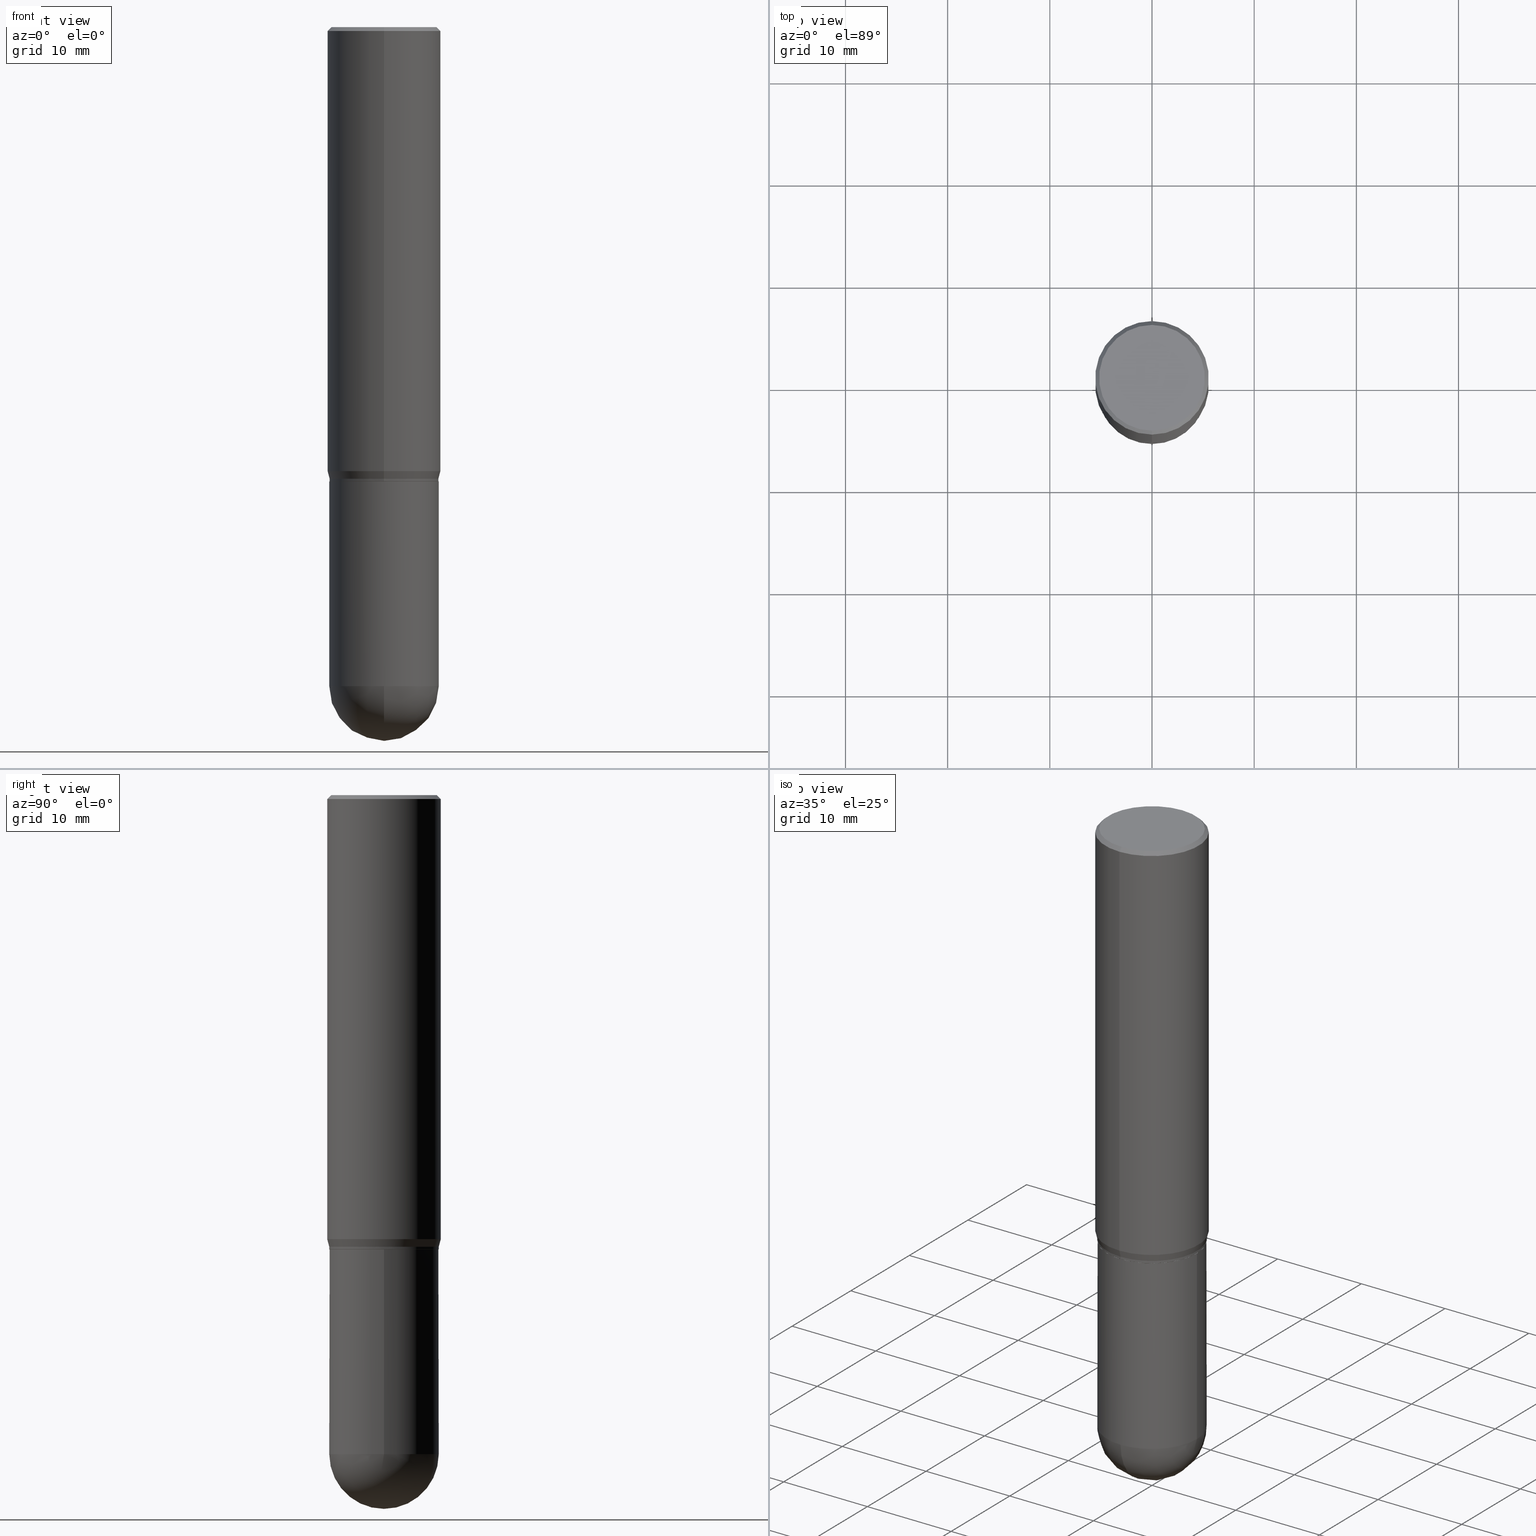
[diagram: canonical four-view strip — front | top / right | iso, engineering-drawing reading convention]
A machine part, canonical four-view strip (front | top / right | iso — engineering-drawing reading convention). The complete STEP part file that produces these views, byte-faithful:
ISO-10303-21;
HEADER;
FILE_DESCRIPTION (( 'STEP AP203' ),
    '1' );
FILE_NAME ('30154.STEP',
    '2024-03-08T15:19:41',
    ( '' ),
    ( '' ),
    'SwSTEP 2.0',
    'SolidWorks 2023',
    '' );
FILE_SCHEMA (( 'CONFIG_CONTROL_DESIGN' ));
ENDSEC;

DATA;
#1 = PLANE ( 'NONE',  #476 ) ;
#2 = FACE_OUTER_BOUND ( 'NONE', #461, .T. ) ;
#3 = DIRECTION ( 'NONE',  ( -6.982962677686265133E-15, -1.000000000000000000, 3.746534391310989557E-15 ) ) ;
#4 = CALENDAR_DATE ( 2024, 8, 3 ) ;
#5 = AXIS2_PLACEMENT_3D ( 'NONE', #495, #176, #96 ) ;
#6 = DIRECTION ( 'NONE',  ( 2.445434585093504913E-29, -3.491530345394105536E-15, -1.000000000000000000 ) ) ;
#7 = EDGE_CURVE ( 'NONE', #53, #145, #33, .T. ) ;
#8 = CARTESIAN_POINT ( 'NONE',  ( 6.209167572344372023E-29, -8.865045693389689499E-15, -2.539050000000000473 ) ) ;
#9 = CIRCLE ( 'NONE', #319, 0.2104499999999999982 ) ;
#10 = PRODUCT ( '30154', '30154', '', ( #26 ) ) ;
#11 = ADVANCED_FACE ( 'NONE', ( #420 ), #85, .T. ) ;
#12 = FACE_OUTER_BOUND ( 'NONE', #232, .T. ) ;
#13 = COORDINATED_UNIVERSAL_TIME_OFFSET ( 5, 0, .BEHIND. ) ;
#14 = CARTESIAN_POINT ( 'NONE',  ( 4.279510523913633107E-29, -6.110178104439684490E-15, -1.750000000000000000 ) ) ;
#15 = ORIENTED_EDGE ( 'NONE', *, *, #417, .F. ) ;
#16 = CC_DESIGN_APPROVAL ( #358, ( #320 ) ) ;
#17 = CYLINDRICAL_SURFACE ( 'NONE', #418, 0.2109500000000000541 ) ;
#18 = ORIENTED_EDGE ( 'NONE', *, *, #153, .F. ) ;
#19 = DATE_AND_TIME ( #175, #241 ) ;
#20 = CARTESIAN_POINT ( 'NONE',  ( 1.527523085743871040E-15, 0.2187499999999999167, -0.01500000000000099691 ) ) ;
#21 = AXIS2_PLACEMENT_3D ( 'NONE', #315, #38, #3 ) ;
#22 = ADVANCED_FACE ( 'NONE', ( #32 ), #262, .T. ) ;
#23 = DIRECTION ( 'NONE',  ( -6.982962677686265133E-15, -1.000000000000000000, 3.491530345394105536E-15 ) ) ;
#24 = ORIENTED_EDGE ( 'NONE', *, *, #404, .F. ) ;
#25 = ORIENTED_EDGE ( 'NONE', *, *, #103, .T. ) ;
#26 = MECHANICAL_CONTEXT ( 'NONE', #378, 'mechanical' ) ;
#27 = DIRECTION ( 'NONE',  ( -2.445434585093504913E-29, 3.491530345394105536E-15, 1.000000000000000000 ) ) ;
#28 = CC_DESIGN_PERSON_AND_ORGANIZATION_ASSIGNMENT ( #318, #365, ( #74 ) ) ;
#29 = AXIS2_PLACEMENT_3D ( 'NONE', #173, #450, #255 ) ;
#30 = CARTESIAN_POINT ( 'NONE',  ( 3.668151877640314350E-31, -5.237295518091239778E-17, -0.01500000000000023190 ) ) ;
#31 = CARTESIAN_POINT ( 'NONE',  ( -1.473055976857874769E-15, -0.2109500000000060216, -1.739999999999999103 ) ) ;
#32 = FACE_OUTER_BOUND ( 'NONE', #331, .T. ) ;
#33 = CIRCLE ( 'NONE', #435, 0.2109500000000000541 ) ;
#34 = CARTESIAN_POINT ( 'NONE',  ( -1.527523085743870054E-15, -0.2187500000000000555, -0.01499999999999946862 ) ) ;
#35 = ORIENTED_EDGE ( 'NONE', *, *, #511, .T. ) ;
#36 = VERTEX_POINT ( 'NONE', #422 ) ;
#37 = EDGE_CURVE ( 'NONE', #410, #395, #9, .T. ) ;
#38 = DIRECTION ( 'NONE',  ( -2.445434585093504913E-29, 3.491530345394105536E-15, 1.000000000000000000 ) ) ;
#39 = CIRCLE ( 'NONE', #137, 0.2109499999999999986 ) ;
#40 = DIRECTION ( 'NONE',  ( -2.445434585093504633E-29, 3.491530345394105536E-15, 1.000000000000000000 ) ) ;
#41 = VECTOR ( 'NONE', #202, 39.37007874015748854 ) ;
#42 = DIRECTION ( 'NONE',  ( -2.445434585093504913E-29, 3.491530345394105536E-15, 1.000000000000000000 ) ) ;
#43 = EDGE_CURVE ( 'NONE', #419, #381, #274, .T. ) ;
#44 = AXIS2_PLACEMENT_3D ( 'NONE', #298, #104, #460 ) ;
#45 = DATE_AND_TIME ( #389, #253 ) ;
#46 = FACE_OUTER_BOUND ( 'NONE', #177, .T. ) ;
#47 = CONICAL_SURFACE ( 'NONE', #412, 0.2187500000000000000, 0.7853981633974485010 ) ;
#48 = ADVANCED_FACE ( 'NONE', ( #2 ), #321, .T. ) ;
#49 = DIRECTION ( 'NONE',  ( 1.000000000000000000, -6.982962677686266711E-15, 0.000000000000000000 ) ) ;
#50 = CARTESIAN_POINT ( 'NONE',  ( 4.279570410823988484E-29, -6.110092342975504671E-15, -1.750000000000000000 ) ) ;
#51 = ORIENTED_EDGE ( 'NONE', *, *, #382, .T. ) ;
#52 = CARTESIAN_POINT ( 'NONE',  ( 0.000000000000000000, 0.000000000000000000, 0.000000000000000000 ) ) ;
#53 = VERTEX_POINT ( 'NONE', #434 ) ;
#54 = CIRCLE ( 'NONE', #346, 0.2104499999999999982 ) ;
#55 = DATE_TIME_ROLE ( 'creation_date' ) ;
#56 = CARTESIAN_POINT ( 'NONE',  ( 4.255056178062698487E-29, -6.075262800985744342E-15, -1.739999999999999991 ) ) ;
#57 = ORIENTED_EDGE ( 'NONE', *, *, #257, .F. ) ;
#58 = DESIGN_CONTEXT ( 'detailed design', #350, 'design' ) ;
#59 = EDGE_CURVE ( 'NONE', #395, #36, #82, .T. ) ;
#60 = CARTESIAN_POINT ( 'NONE',  ( 0.000000000000000000, 0.000000000000000000, 0.000000000000000000 ) ) ;
#61 = DIRECTION ( 'NONE',  ( -2.445434585093504913E-29, 3.491530345394105536E-15, 1.000000000000000000 ) ) ;
#62 = EDGE_LOOP ( 'NONE', ( #490, #487, #181, #186 ) ) ;
#63 = AXIS2_PLACEMENT_3D ( 'NONE', #379, #278, #209 ) ;
#64 = APPROVAL ( #376, 'UNSPECIFIED' ) ;
#65 = DIRECTION ( 'NONE',  ( -1.000000000000000000, 6.982962677686265922E-15, -4.876176775795935793E-29 ) ) ;
#66 = LENGTH_MEASURE_WITH_UNIT ( LENGTH_MEASURE( 0.02539999999999999897 ), #185 );
#67 = ORIENTED_EDGE ( 'NONE', *, *, #392, .F. ) ;
#68 = CARTESIAN_POINT ( 'NONE',  ( -1.473055976857874769E-15, -0.2109500000000060216, -1.739999999999999103 ) ) ;
#69 = EDGE_LOOP ( 'NONE', ( #333, #252 ) ) ;
#70 = COORDINATED_UNIVERSAL_TIME_OFFSET ( 5, 0, .BEHIND. ) ;
#71 = VECTOR ( 'NONE', #486, 39.37007874015748143 ) ;
#72 = ORIENTED_EDGE ( 'NONE', *, *, #408, .F. ) ;
#73 = ORIENTED_EDGE ( 'NONE', *, *, #204, .F. ) ;
#74 = PRODUCT_DEFINITION ( 'UNKNOWN', '', #289, #58 ) ;
#75 = CARTESIAN_POINT ( 'NONE',  ( 4.255056178062698487E-29, -6.075262800985744342E-15, -1.739999999999999991 ) ) ;
#76 = PERSON_AND_ORGANIZATION ( #459, #326 ) ;
#77 = DIRECTION ( 'NONE',  ( -6.982962677686265133E-15, -1.000000000000000000, 3.885064698266314873E-15 ) ) ;
#78 = VECTOR ( 'NONE', #151, 39.37007874015748854 ) ;
#79 = DIRECTION ( 'NONE',  ( -6.982962677686265133E-15, -1.000000000000000000, 3.492862791899308071E-15 ) ) ;
#80 = EDGE_CURVE ( 'NONE', #145, #110, #160, .T. ) ;
#81 = APPROVAL_ROLE ( '' ) ;
#82 = LINE ( 'NONE', #169, #41 ) ;
#83 = ADVANCED_FACE ( 'NONE', ( #271 ), #47, .T. ) ;
#84 = DIRECTION ( 'NONE',  ( -2.445468806185136597E-29, 3.491481338843145583E-15, 1.000000000000000000 ) ) ;
#85 = CONICAL_SURFACE ( 'NONE', #150, 0.2109499999999999431, 0.2617993877991505736 ) ;
#86 = LOCAL_TIME ( 10, 19, 41.00000000000000000, #462 ) ;
#87 = DIRECTION ( 'NONE',  ( -2.445434585093504913E-29, 3.491530345394105536E-15, 1.000000000000000000 ) ) ;
#88 = ORIENTED_EDGE ( 'NONE', *, *, #239, .T. ) ;
#89 = AXIS2_PLACEMENT_3D ( 'NONE', #60, #380, #23 ) ;
#90 = DIRECTION ( 'NONE',  ( -6.982962677686265133E-15, -1.000000000000000000, 3.885064698266314873E-15 ) ) ;
#91 = VERTEX_POINT ( 'NONE', #438 ) ;
#92 = EDGE_CURVE ( 'NONE', #395, #410, #54, .T. ) ;
#93 = DIRECTION ( 'NONE',  ( -2.445434585093504913E-29, 3.491530345394105536E-15, 1.000000000000000000 ) ) ;
#94 = ORIENTED_EDGE ( 'NONE', *, *, #7, .T. ) ;
#95 = APPROVAL_PERSON_ORGANIZATION ( #98, #358, #258 ) ;
#96 = DIRECTION ( 'NONE',  ( -6.982962677686265133E-15, -1.000000000000000000, 3.746534391310989557E-15 ) ) ;
#97 = ORIENTED_EDGE ( 'NONE', *, *, #511, .F. ) ;
#98 = PERSON_AND_ORGANIZATION ( #459, #326 ) ;
#99 = CARTESIAN_POINT ( 'NONE',  ( -1.527523085743828442E-15, -0.2187500000000059397, -1.710890003700962003 ) ) ;
#100 = ORIENTED_EDGE ( 'NONE', *, *, #130, .F. ) ;
#101 = VECTOR ( 'NONE', #270, 39.37007874015748143 ) ;
#102 = CALENDAR_DATE ( 2024, 8, 3 ) ;
#103 = EDGE_CURVE ( 'NONE', #381, #499, #122, .T. ) ;
#104 = DIRECTION ( 'NONE',  ( -2.445434585093504913E-29, 3.491530345394105536E-15, 1.000000000000000000 ) ) ;
#105 = ORIENTED_EDGE ( 'NONE', *, *, #123, .F. ) ;
#106 = CARTESIAN_POINT ( 'NONE',  ( 4.279570410823988484E-29, -6.110092342975504671E-15, -1.750000000000000000 ) ) ;
#107 = EDGE_LOOP ( 'NONE', ( #368, #471, #215, #287 ) ) ;
#108 = DIRECTION ( 'NONE',  ( 1.000000000000000000, 0.000000000000000000, 0.000000000000000000 ) ) ;
#109 = DIRECTION ( 'NONE',  ( 6.982962677686265133E-15, 1.000000000000000000, -2.590043132177541277E-15 ) ) ;
#110 = VERTEX_POINT ( 'NONE', #403 ) ;
#111 = UNCERTAINTY_MEASURE_WITH_UNIT (LENGTH_MEASURE( 1.000000000000000082E-05 ), #148, 'distance_accuracy_value', 'NONE');
#112 = PRODUCT_DEFINITION_SHAPE ( 'NONE', 'NONE',  #74 ) ;
#113 = AXIS2_PLACEMENT_3D ( 'NONE', #119, #470, #308 ) ;
#114 = CARTESIAN_POINT ( 'NONE',  ( 0.2109500000000000541, -8.960624995040515044E-15, -2.539050000000000473 ) ) ;
#115 = ORIENTED_EDGE ( 'NONE', *, *, #43, .T. ) ;
#116 = CC_DESIGN_APPROVAL ( #64, ( #289 ) ) ;
#117 = ADVANCED_FACE ( 'NONE', ( #46 ), #208, .T. ) ;
#118 = AXIS2_PLACEMENT_3D ( 'NONE', #361, #42, #437 ) ;
#119 = CARTESIAN_POINT ( 'NONE',  ( 5.702671946011534855E-45, -8.142132392621577057E-31, -2.331966669962461772E-16 ) ) ;
#120 = ORIENTED_EDGE ( 'NONE', *, *, #417, .T. ) ;
#121 = LINE ( 'NONE', #273, #229 ) ;
#122 = LINE ( 'NONE', #316, #191 ) ;
#123 = EDGE_CURVE ( 'NONE', #225, #53, #477, .T. ) ;
#124 = AXIS2_PLACEMENT_3D ( 'NONE', #474, #432, #79 ) ;
#125 = CARTESIAN_POINT ( 'NONE',  ( 1.422778645578576487E-15, 0.2037499999999999867, -8.279976413721720471E-16 ) ) ;
#126 = COORDINATED_UNIVERSAL_TIME_OFFSET ( 5, 0, .BEHIND. ) ;
#127 = AXIS2_PLACEMENT_3D ( 'NONE', #207, #322, #108 ) ;
#128 = DIRECTION ( 'NONE',  ( -2.445468806185136597E-29, 3.491481338843145583E-15, 1.000000000000000000 ) ) ;
#129 = DIRECTION ( 'NONE',  ( 1.839019923739602287E-15, 0.2588190451025252359, 0.9659258262890670910 ) ) ;
#130 = EDGE_CURVE ( 'NONE', #338, #110, #442, .T. ) ;
#131 = CARTESIAN_POINT ( 'NONE',  ( -1.449280202029235538E-15, -0.2037499999999999867, 4.782026408778026828E-16 ) ) ;
#132 = CIRCLE ( 'NONE', #413, 0.2109499999999999431 ) ;
#133 = PERSON_AND_ORGANIZATION_ROLE ( 'creator' ) ;
#134 = FACE_OUTER_BOUND ( 'NONE', #294, .T. ) ;
#135 = ORIENTED_EDGE ( 'NONE', *, *, #341, .T. ) ;
#136 = ADVANCED_FACE ( 'NONE', ( #507 ), #154, .F. ) ;
#137 = AXIS2_PLACEMENT_3D ( 'NONE', #50, #84, #49 ) ;
#138 = DIRECTION ( 'NONE',  ( -4.937700262164715281E-15, -0.7071067811865691111, 0.7071067811865257013 ) ) ;
#139 = ORIENTED_EDGE ( 'NONE', *, *, #213, .T. ) ;
#140 = DIRECTION ( 'NONE',  ( -2.445434585093504913E-29, 3.491530345394105536E-15, 1.000000000000000000 ) ) ;
#141 = ORIENTED_EDGE ( 'NONE', *, *, #341, .F. ) ;
#142 = DIRECTION ( 'NONE',  ( -2.445434585093504633E-29, 3.491530345394105536E-15, 1.000000000000000000 ) ) ;
#143 = ORIENTED_EDGE ( 'NONE', *, *, #392, .T. ) ;
#144 = EDGE_CURVE ( 'NONE', #159, #388, #132, .T. ) ;
#145 = VERTEX_POINT ( 'NONE', #114 ) ;
#146 = APPROVAL_PERSON_ORGANIZATION ( #275, #64, #436 ) ;
#147 = MANIFOLD_SOLID_BREP ( 'Body-Move/Copy2[1]', #205 ) ;
#148 =( CONVERSION_BASED_UNIT ( 'INCH', #66 ) LENGTH_UNIT ( ) NAMED_UNIT ( #238 ) );
#149 = DIRECTION ( 'NONE',  ( -6.982962677686265133E-15, -1.000000000000000000, 3.491530345394105536E-15 ) ) ;
#150 = AXIS2_PLACEMENT_3D ( 'NONE', #506, #27, #187 ) ;
#151 = DIRECTION ( 'NONE',  ( -1.807323732225332111E-15, -0.2588190451025184635, 0.9659258262890689783 ) ) ;
#152 = DIRECTION ( 'NONE',  ( -2.445434585093504913E-29, 3.491530345394105536E-15, 1.000000000000000000 ) ) ;
#153 = EDGE_CURVE ( 'NONE', #36, #388, #195, .T. ) ;
#154 = PLANE ( 'NONE',  #267 ) ;
#155 = LINE ( 'NONE', #31, #78 ) ;
#156 = ORIENTED_EDGE ( 'NONE', *, *, #351, .T. ) ;
#157 = CIRCLE ( 'NONE', #468, 0.2109500000000001096 ) ;
#158 = DIRECTION ( 'NONE',  ( -6.982962677686265922E-15, -1.000000000000000000, 3.491530345394105536E-15 ) ) ;
#159 = VERTEX_POINT ( 'NONE', #68 ) ;
#160 = CIRCLE ( 'NONE', #329, 0.2109500000000000541 ) ;
#161 = CARTESIAN_POINT ( 'NONE',  ( 1.554312234475260769E-15, 0.2187499999999940603, -1.710890003700963558 ) ) ;
#162 = DIRECTION ( 'NONE',  ( -2.445468806185136597E-29, 3.491481338843145583E-15, 1.000000000000000000 ) ) ;
#163 = EDGE_CURVE ( 'NONE', #110, #225, #479, .T. ) ;
#164 = CARTESIAN_POINT ( 'NONE',  ( 6.191127839474132236E-29, -8.890879617617701491E-15, -2.539049999999999585 ) ) ;
#165 = DIRECTION ( 'NONE',  ( -2.445434585093504913E-29, 3.491530345394105536E-15, 1.000000000000000000 ) ) ;
#166 = VECTOR ( 'NONE', #138, 39.37007874015748854 ) ;
#167 = APPROVAL_DATE_TIME ( #295, #498 ) ;
#168 = AXIS2_PLACEMENT_3D ( 'NONE', #200, #235, #171 ) ;
#169 = CARTESIAN_POINT ( 'NONE',  ( 1.495337187407173427E-15, 0.2104499999999938920, -1.750000000000000666 ) ) ;
#170 = CC_DESIGN_PERSON_AND_ORGANIZATION_ASSIGNMENT ( #424, #342, ( #10 ) ) ;
#171 = DIRECTION ( 'NONE',  ( -6.982962677686265133E-15, -1.000000000000000000, 3.491530345394105141E-15 ) ) ;
#172 = AXIS2_PLACEMENT_3D ( 'NONE', #164, #473, #398 ) ;
#173 = CARTESIAN_POINT ( 'NONE',  ( 3.668151877640314350E-31, -5.237295518091239778E-17, -0.01500000000000023190 ) ) ;
#174 = VERTEX_POINT ( 'NONE', #500 ) ;
#175 = CALENDAR_DATE ( 2024, 8, 3 ) ;
#176 = DIRECTION ( 'NONE',  ( -2.445434585093504913E-29, 3.491530345394105536E-15, 1.000000000000000000 ) ) ;
#177 = EDGE_LOOP ( 'NONE', ( #448, #223, #24, #97, #390 ) ) ;
#178 = PRODUCT_RELATED_PRODUCT_CATEGORY ( 'detail', '', ( #10 ) ) ;
#179 = DIRECTION ( 'NONE',  ( 1.000000000000000000, -6.982962677686265133E-15, 0.000000000000000000 ) ) ;
#180 = DIRECTION ( 'NONE',  ( 4.937700262164548831E-15, 0.7071067811865452413, -0.7071067811865497932 ) ) ;
#181 = ORIENTED_EDGE ( 'NONE', *, *, #281, .F. ) ;
#182 = CARTESIAN_POINT ( 'NONE',  ( 6.191127839474132236E-29, -8.890879617617701491E-15, -2.539049999999999585 ) ) ;
#183 = ORIENTED_EDGE ( 'NONE', *, *, #382, .F. ) ;
#184 = CARTESIAN_POINT ( 'NONE',  ( 4.255056178062698487E-29, -6.075262800985744342E-15, -1.739999999999999991 ) ) ;
#185 =( LENGTH_UNIT ( ) NAMED_UNIT ( * ) SI_UNIT ( $, .METRE. ) );
#186 = ORIENTED_EDGE ( 'NONE', *, *, #292, .F. ) ;
#187 = DIRECTION ( 'NONE',  ( -6.982962677686265133E-15, -1.000000000000000000, 3.885064698266314873E-15 ) ) ;
#188 = CIRCLE ( 'NONE', #113, 0.2037499999999999867 ) ;
#189 = DIRECTION ( 'NONE',  ( -2.445434585093504913E-29, 3.491530345394105536E-15, 1.000000000000000000 ) ) ;
#190 = CARTESIAN_POINT ( 'NONE',  ( 4.279510523913633107E-29, -6.110178104439684490E-15, -1.750000000000000000 ) ) ;
#191 = VECTOR ( 'NONE', #359, 39.37007874015748143 ) ;
#192 = EDGE_CURVE ( 'NONE', #36, #469, #251, .T. ) ;
#193 = VECTOR ( 'NONE', #142, 39.37007874015748143 ) ;
#194 = ORIENTED_EDGE ( 'NONE', *, *, #80, .F. ) ;
#195 = LINE ( 'NONE', #497, #193 ) ;
#196 = EDGE_LOOP ( 'NONE', ( #115, #218 ) ) ;
#197 = AXIS2_PLACEMENT_3D ( 'NONE', #106, #261, #421 ) ;
#198 = DIRECTION ( 'NONE',  ( -2.445434585093504913E-29, 3.491530345394105536E-15, 1.000000000000000000 ) ) ;
#199 = EDGE_CURVE ( 'NONE', #174, #284, #377, .T. ) ;
#200 = CARTESIAN_POINT ( 'NONE',  ( 5.702671946011534855E-45, -8.142132392621577057E-31, -2.331966669962461772E-16 ) ) ;
#201 = LINE ( 'NONE', #268, #101 ) ;
#202 = DIRECTION ( 'NONE',  ( 5.024295867788231995E-15, 0.7071067811865739960, 0.7071067811865208164 ) ) ;
#203 = VECTOR ( 'NONE', #129, 39.37007874015748143 ) ;
#204 = EDGE_CURVE ( 'NONE', #499, #91, #335, .T. ) ;
#205 = CLOSED_SHELL ( 'NONE', ( #117, #233, #136, #480, #334 ) ) ;
#206 = AXIS2_PLACEMENT_3D ( 'NONE', #430, #128, #179 ) ;
#207 = CARTESIAN_POINT ( 'NONE',  ( 0.000000000000000000, 0.000000000000000000, 0.000000000000000000 ) ) ;
#208 = CYLINDRICAL_SURFACE ( 'NONE', #282, 0.2109500000000000541 ) ;
#209 = DIRECTION ( 'NONE',  ( 6.982962677686265922E-15, 1.000000000000000000, 0.000000000000000000 ) ) ;
#210 = CARTESIAN_POINT ( 'NONE',  ( 4.278287806621086797E-29, -6.108432339266988193E-15, -1.749500000000000055 ) ) ;
#211 = APPROVAL_STATUS ( 'not_yet_approved' ) ;
#212 = AXIS2_PLACEMENT_3D ( 'NONE', #290, #93, #250 ) ;
#213 = EDGE_CURVE ( 'NONE', #493, #499, #121, .T. ) ;
#214 = DIRECTION ( 'NONE',  ( -1.000000000000000000, 7.105427357601001070E-15, -4.926315508542082329E-29 ) ) ;
#215 = ORIENTED_EDGE ( 'NONE', *, *, #292, .T. ) ;
#216 = COORDINATED_UNIVERSAL_TIME_OFFSET ( 5, 0, .BEHIND. ) ;
#217 = DIRECTION ( 'NONE',  ( -6.982962677686265133E-15, -1.000000000000000000, 3.885064698266314873E-15 ) ) ;
#218 = ORIENTED_EDGE ( 'NONE', *, *, #257, .T. ) ;
#219 = CARTESIAN_POINT ( 'NONE',  ( 6.716019350574006308E-29, -9.614490643932656644E-15, -2.750000000000000000 ) ) ;
#220 = EDGE_LOOP ( 'NONE', ( #458, #375, #94, #35, #512 ) ) ;
#221 =( GEOMETRIC_REPRESENTATION_CONTEXT ( 3 ) GLOBAL_UNCERTAINTY_ASSIGNED_CONTEXT ( ( #111 ) ) GLOBAL_UNIT_ASSIGNED_CONTEXT ( ( #148, #481, #475 ) ) REPRESENTATION_CONTEXT ( 'NONE', 'WORKASPACE' ) );
#222 = DIRECTION ( 'NONE',  ( -2.445434585093504913E-29, 3.491530345394105536E-15, 1.000000000000000000 ) ) ;
#223 = ORIENTED_EDGE ( 'NONE', *, *, #260, .T. ) ;
#224 = ADVANCED_FACE ( 'NONE', ( #396 ), #429, .F. ) ;
#225 = VERTEX_POINT ( 'NONE', #234 ) ;
#226 = ORIENTED_EDGE ( 'NONE', *, *, #408, .T. ) ;
#227 = ORIENTED_EDGE ( 'NONE', *, *, #472, .F. ) ;
#228 = EDGE_CURVE ( 'NONE', #493, #266, #502, .T. ) ;
#229 = VECTOR ( 'NONE', #352, 39.37007874015748143 ) ;
#230 = ORIENTED_EDGE ( 'NONE', *, *, #7, .F. ) ;
#231 = CARTESIAN_POINT ( 'NONE',  ( 0.2109500000000000541, -1.473055976857918157E-15, 1.028629490854152908E-29 ) ) ;
#232 = EDGE_LOOP ( 'NONE', ( #57, #25, #415, #67 ) ) ;
#233 = ADVANCED_FACE ( 'NONE', ( #433 ), #355, .T. ) ;
#234 = CARTESIAN_POINT ( 'NONE',  ( -0.2109500000000000541, -5.988679117096665555E-15, -2.539050000000000473 ) ) ;
#235 = DIRECTION ( 'NONE',  ( -2.445434585093504913E-29, 3.491530345394105536E-15, 1.000000000000000000 ) ) ;
#236 = VECTOR ( 'NONE', #394, 39.37007874015748143 ) ;
#237 = DIRECTION ( 'NONE',  ( 2.445434585093504633E-29, -3.491530345394105536E-15, -1.000000000000000000 ) ) ;
#238 = DIMENSIONAL_EXPONENTS ( 1.000000000000000000, 0.000000000000000000, 0.000000000000000000, 0.000000000000000000, 0.000000000000000000, 0.000000000000000000, 0.000000000000000000 ) ;
#239 = EDGE_CURVE ( 'NONE', #91, #499, #264, .T. ) ;
#240 = AXIS2_PLACEMENT_3D ( 'NONE', #52, #87, #332 ) ;
#241 = LOCAL_TIME ( 10, 19, 41.00000000000000000, #13 ) ;
#242 = CARTESIAN_POINT ( 'NONE',  ( 4.279510523913633107E-29, -6.110178104439684490E-15, -1.750000000000000000 ) ) ;
#243 = CARTESIAN_POINT ( 'NONE',  ( -1.473055976857917171E-15, -0.2109499999999999431, 7.365383263608863701E-16 ) ) ;
#244 = ADVANCED_FACE ( 'NONE', ( #400 ), #1, .F. ) ;
#245 = FACE_OUTER_BOUND ( 'NONE', #107, .T. ) ;
#246 = ORIENTED_EDGE ( 'NONE', *, *, #153, .T. ) ;
#247 = AXIS2_PLACEMENT_3D ( 'NONE', #75, #198, #77 ) ;
#248 = FACE_OUTER_BOUND ( 'NONE', #62, .T. ) ;
#249 = ORIENTED_EDGE ( 'NONE', *, *, #456, .T. ) ;
#250 = DIRECTION ( 'NONE',  ( -6.982962677686266711E-15, -1.000000000000000000, 3.894295072935514223E-15 ) ) ;
#251 = CIRCLE ( 'NONE', #44, 0.2109499999999999431 ) ;
#252 = ORIENTED_EDGE ( 'NONE', *, *, #92, .F. ) ;
#253 = LOCAL_TIME ( 10, 19, 41.00000000000000000, #70 ) ;
#254 = PERSON_AND_ORGANIZATION ( #459, #326 ) ;
#255 = DIRECTION ( 'NONE',  ( 6.982962677686265133E-15, 1.000000000000000000, -3.492862791899308071E-15 ) ) ;
#256 = EDGE_LOOP ( 'NONE', ( #348, #307 ) ) ;
#257 = EDGE_CURVE ( 'NONE', #381, #419, #188, .T. ) ;
#258 = APPROVAL_ROLE ( '' ) ;
#259 = DIRECTION ( 'NONE',  ( 1.000000000000000000, -6.982962677686265133E-15, 0.000000000000000000 ) ) ;
#260 = EDGE_CURVE ( 'NONE', #225, #174, #201, .T. ) ;
#261 = DIRECTION ( 'NONE',  ( -2.445468806185136597E-29, 3.491481338843145583E-15, 1.000000000000000000 ) ) ;
#262 = CYLINDRICAL_SURFACE ( 'NONE', #391, 0.2109499999999999431 ) ;
#263 = ORIENTED_EDGE ( 'NONE', *, *, #192, .T. ) ;
#264 = CIRCLE ( 'NONE', #124, 0.2187500000000000000 ) ;
#265 = CARTESIAN_POINT ( 'NONE',  ( 6.191127839474132236E-29, -8.890879617617701491E-15, -2.539049999999999585 ) ) ;
#266 = VERTEX_POINT ( 'NONE', #161 ) ;
#267 = AXIS2_PLACEMENT_3D ( 'NONE', #306, #393, #65 ) ;
#268 = CARTESIAN_POINT ( 'NONE',  ( -0.2109500000000000541, 1.498889901085931727E-15, -1.037649357289272662E-29 ) ) ;
#269 = DIRECTION ( 'NONE',  ( 1.000000000000000000, -6.982962677686265922E-15, 4.876176775795935793E-29 ) ) ;
#270 = DIRECTION ( 'NONE',  ( -2.445468806185136877E-29, 3.491481338843145188E-15, 1.000000000000000000 ) ) ;
#271 = FACE_OUTER_BOUND ( 'NONE', #385, .T. ) ;
#272 = CIRCLE ( 'NONE', #387, 0.2109499999999999431 ) ;
#273 = CARTESIAN_POINT ( 'NONE',  ( -1.527523085743870449E-15, -0.2187500000000000000, 7.637722630549605613E-16 ) ) ;
#274 = CIRCLE ( 'NONE', #168, 0.2037499999999999867 ) ;
#275 = PERSON_AND_ORGANIZATION ( #459, #326 ) ;
#276 = ADVANCED_FACE ( 'NONE', ( #313 ), #288, .T. ) ;
#277 = VECTOR ( 'NONE', #180, 39.37007874015748143 ) ;
#278 = DIRECTION ( 'NONE',  ( 1.000000000000000000, -6.982962677686265922E-15, 4.883557194083112340E-29 ) ) ;
#279 = LINE ( 'NONE', #414, #166 ) ;
#280 = ADVANCED_BREP_SHAPE_REPRESENTATION ( '30154', ( #147, #311, #127 ), #221 ) ;
#281 = EDGE_CURVE ( 'NONE', #469, #36, #272, .T. ) ;
#282 = AXIS2_PLACEMENT_3D ( 'NONE', #363, #483, #269 ) ;
#283 = LINE ( 'NONE', #286, #203 ) ;
#284 = VERTEX_POINT ( 'NONE', #364 ) ;
#285 = PERSON_AND_ORGANIZATION_ROLE ( 'design_supplier' ) ;
#286 = CARTESIAN_POINT ( 'NONE',  ( 1.498889901085973142E-15, 0.2109499999999938646, -1.740000000000000879 ) ) ;
#287 = ORIENTED_EDGE ( 'NONE', *, *, #192, .F. ) ;
#288 = CONICAL_SURFACE ( 'NONE', #247, 0.2109499999999999431, 0.2617993877991505736 ) ;
#289 = PRODUCT_DEFINITION_FORMATION_WITH_SPECIFIED_SOURCE ( 'ANY', '', #10, .NOT_KNOWN. ) ;
#290 = CARTESIAN_POINT ( 'NONE',  ( 4.279510523913633107E-29, -6.110178104439684490E-15, -1.750000000000000000 ) ) ;
#291 = ORIENTED_EDGE ( 'NONE', *, *, #144, .T. ) ;
#292 = EDGE_CURVE ( 'NONE', #410, #469, #279, .T. ) ;
#293 = LINE ( 'NONE', #406, #317 ) ;
#294 = EDGE_LOOP ( 'NONE', ( #183, #120, #139, #426 ) ) ;
#295 = DATE_AND_TIME ( #4, #457 ) ;
#296 = CARTESIAN_POINT ( 'NONE',  ( 6.209167572344372023E-29, -8.865045693389689499E-15, -2.539050000000000473 ) ) ;
#297 = ORIENTED_EDGE ( 'NONE', *, *, #351, .F. ) ;
#298 = CARTESIAN_POINT ( 'NONE',  ( 4.278287806621086797E-29, -6.108432339266988193E-15, -1.749500000000000055 ) ) ;
#299 = CC_DESIGN_APPROVAL ( #498, ( #74 ) ) ;
#300 = ORIENTED_EDGE ( 'NONE', *, *, #472, .T. ) ;
#301 = CC_DESIGN_DATE_AND_TIME_ASSIGNMENT ( #466, #349, ( #320 ) ) ;
#302 = DIRECTION ( 'NONE',  ( -2.445468806185136597E-29, 3.491481338843145583E-15, 1.000000000000000000 ) ) ;
#303 = PERSON_AND_ORGANIZATION_ROLE ( 'classification_officer' ) ;
#304 = SPHERICAL_SURFACE ( 'NONE', #494, 0.2109500000000001096 ) ;
#305 = EDGE_LOOP ( 'NONE', ( #508, #246, #455, #297 ) ) ;
#306 = CARTESIAN_POINT ( 'NONE',  ( 1.473055976857960361E-15, 0.2109499999999938924, -1.750000000000000666 ) ) ;
#307 = ORIENTED_EDGE ( 'NONE', *, *, #199, .T. ) ;
#308 = DIRECTION ( 'NONE',  ( -6.982962677686265133E-15, -1.000000000000000000, 3.491530345394105141E-15 ) ) ;
#309 = ORIENTED_EDGE ( 'NONE', *, *, #103, .F. ) ;
#310 = ADVANCED_FACE ( 'NONE', ( #248 ), #354, .T. ) ;
#311 = MANIFOLD_SOLID_BREP ( 'Body-Move/Copy2[2]', #312 ) ;
#312 = CLOSED_SHELL ( 'NONE', ( #439, #310, #372, #48, #11, #276, #463, #83, #224, #244, #324, #22 ) ) ;
#313 = FACE_OUTER_BOUND ( 'NONE', #451, .T. ) ;
#314 = DIRECTION ( 'NONE',  ( -6.982962677686266711E-15, -1.000000000000000000, 3.894295072935514223E-15 ) ) ;
#315 = CARTESIAN_POINT ( 'NONE',  ( 4.183869586341088667E-29, -5.973624365553345919E-15, -1.710890003700962669 ) ) ;
#316 = CARTESIAN_POINT ( 'NONE',  ( -1.500733937012521740E-15, -0.2187500000000000555, -0.01499999999999946862 ) ) ;
#317 = VECTOR ( 'NONE', #374, 39.37007874015748143 ) ;
#318 = PERSON_AND_ORGANIZATION ( #459, #326 ) ;
#319 = AXIS2_PLACEMENT_3D ( 'NONE', #190, #152, #465 ) ;
#320 = SECURITY_CLASSIFICATION ( '', '', #445 ) ;
#321 = CYLINDRICAL_SURFACE ( 'NONE', #118, 0.2187500000000000000 ) ;
#322 = DIRECTION ( 'NONE',  ( 0.000000000000000000, 0.000000000000000000, 1.000000000000000000 ) ) ;
#323 = DIRECTION ( 'NONE',  ( 6.982962677686265133E-15, 1.000000000000000000, -3.492862791899308071E-15 ) ) ;
#324 = ADVANCED_FACE ( 'NONE', ( #245 ), #440, .T. ) ;
#325 = FACE_OUTER_BOUND ( 'NONE', #220, .T. ) ;
#326 = ORGANIZATION ( 'UNSPECIFIED', 'UNSPECIFIED', '' ) ;
#327 = CARTESIAN_POINT ( 'NONE',  ( 1.475150865661223764E-15, 0.2037499999999999867, -9.445959748702948399E-16 ) ) ;
#328 = APPROVAL_DATE_TIME ( #19, #64 ) ;
#329 = AXIS2_PLACEMENT_3D ( 'NONE', #8, #162, #401 ) ;
#330 = FACE_OUTER_BOUND ( 'NONE', #305, .T. ) ;
#331 = EDGE_LOOP ( 'NONE', ( #18, #263, #156, #141 ) ) ;
#332 = DIRECTION ( 'NONE',  ( -6.982962677686265133E-15, -1.000000000000000000, 3.491530345394105536E-15 ) ) ;
#333 = ORIENTED_EDGE ( 'NONE', *, *, #37, .F. ) ;
#334 = ADVANCED_FACE ( 'NONE', ( #325 ), #17, .T. ) ;
#335 = CIRCLE ( 'NONE', #425, 0.2187500000000000000 ) ;
#336 = DIRECTION ( 'NONE',  ( -7.105427357601001070E-15, -1.000000000000000000, 0.000000000000000000 ) ) ;
#337 = ORIENTED_EDGE ( 'NONE', *, *, #43, .F. ) ;
#338 = VERTEX_POINT ( 'NONE', #219 ) ;
#339 = DIRECTION ( 'NONE',  ( 1.000000000000000000, -6.982962677686265133E-15, 0.000000000000000000 ) ) ;
#340 = EDGE_LOOP ( 'NONE', ( #100, #226, #105, #454 ) ) ;
#341 = EDGE_CURVE ( 'NONE', #388, #159, #485, .T. ) ;
#342 = PERSON_AND_ORGANIZATION_ROLE ( 'design_owner' ) ;
#343 = CARTESIAN_POINT ( 'NONE',  ( 0.000000000000000000, 0.000000000000000000, 0.000000000000000000 ) ) ;
#344 = DIRECTION ( 'NONE',  ( -6.982962677686265133E-15, -1.000000000000000000, 3.492862791899308071E-15 ) ) ;
#345 = CARTESIAN_POINT ( 'NONE',  ( 6.209167572344372023E-29, -8.865045693389689499E-15, -2.539050000000000473 ) ) ;
#346 = AXIS2_PLACEMENT_3D ( 'NONE', #242, #165, #314 ) ;
#347 = AXIS2_PLACEMENT_3D ( 'NONE', #296, #383, #339 ) ;
#348 = ORIENTED_EDGE ( 'NONE', *, *, #404, .T. ) ;
#349 = DATE_TIME_ROLE ( 'classification_date' ) ;
#350 = APPLICATION_CONTEXT ( 'configuration controlled 3d designs of mechanical parts and assemblies' ) ;
#351 = EDGE_CURVE ( 'NONE', #469, #159, #453, .T. ) ;
#352 = DIRECTION ( 'NONE',  ( -2.445434585093504633E-29, 3.491530345394105536E-15, 1.000000000000000000 ) ) ;
#353 = ORIENTED_EDGE ( 'NONE', *, *, #228, .T. ) ;
#354 = CONICAL_SURFACE ( 'NONE', #449, 0.2104499999999999982, 0.7853981633974824739 ) ;
#355 = SPHERICAL_SURFACE ( 'NONE', #172, 0.2109500000000001096 ) ;
#356 = APPROVAL_DATE_TIME ( #45, #358 ) ;
#357 = DIRECTION ( 'NONE',  ( 6.982962677686265922E-15, 1.000000000000000000, -3.491530345394105536E-15 ) ) ;
#358 = APPROVAL ( #423, 'UNSPECIFIED' ) ;
#359 = DIRECTION ( 'NONE',  ( -4.851104656540965064E-15, -0.7071067811865501263, -0.7071067811865449082 ) ) ;
#360 = CIRCLE ( 'NONE', #5, 0.2187500000000000000 ) ;
#361 = CARTESIAN_POINT ( 'NONE',  ( 0.000000000000000000, 0.000000000000000000, 0.000000000000000000 ) ) ;
#362 = CC_DESIGN_SECURITY_CLASSIFICATION ( #320, ( #289 ) ) ;
#363 = CARTESIAN_POINT ( 'NONE',  ( 0.000000000000000000, 0.000000000000000000, 0.000000000000000000 ) ) ;
#364 = CARTESIAN_POINT ( 'NONE',  ( 0.2109499999999999986, -7.583148319833423025E-15, -1.750000000000000000 ) ) ;
#365 = PERSON_AND_ORGANIZATION_ROLE ( 'creator' ) ;
#366 = LOCAL_TIME ( 10, 19, 41.00000000000000000, #216 ) ;
#367 = CARTESIAN_POINT ( 'NONE',  ( -1.469564495519032157E-15, -0.2104500000000061044, -1.749999999999999112 ) ) ;
#368 = ORIENTED_EDGE ( 'NONE', *, *, #59, .F. ) ;
#369 = PERSON_AND_ORGANIZATION ( #459, #326 ) ;
#370 = CARTESIAN_POINT ( 'NONE',  ( 1.526601067780616758E-15, 0.2109499999999938646, -1.740000000000000879 ) ) ;
#371 = EDGE_LOOP ( 'NONE', ( #72, #428, #194, #230 ) ) ;
#372 = ADVANCED_FACE ( 'NONE', ( #12 ), #510, .T. ) ;
#373 = DATE_AND_TIME ( #411, #366 ) ;
#374 = DIRECTION ( 'NONE',  ( -2.445434585093504633E-29, 3.491530345394105536E-15, 1.000000000000000000 ) ) ;
#375 = ORIENTED_EDGE ( 'NONE', *, *, #123, .T. ) ;
#376 = APPROVAL_STATUS ( 'not_yet_approved' ) ;
#377 = CIRCLE ( 'NONE', #197, 0.2109499999999999986 ) ;
#378 = APPLICATION_CONTEXT ( 'configuration controlled 3d designs of mechanical parts and assemblies' ) ;
#379 = CARTESIAN_POINT ( 'NONE',  ( 6.191127839474132236E-29, -8.890879617617701491E-15, -2.539049999999999585 ) ) ;
#380 = DIRECTION ( 'NONE',  ( -2.445434585093504913E-29, 3.491530345394105536E-15, 1.000000000000000000 ) ) ;
#381 = VERTEX_POINT ( 'NONE', #131 ) ;
#382 = EDGE_CURVE ( 'NONE', #266, #91, #293, .T. ) ;
#383 = DIRECTION ( 'NONE',  ( -2.445468806185136597E-29, 3.491481338843145583E-15, 1.000000000000000000 ) ) ;
#384 = DIRECTION ( 'NONE',  ( -1.000000000000000000, 6.982962677686265133E-15, -4.883557194083112340E-29 ) ) ;
#385 = EDGE_LOOP ( 'NONE', ( #309, #337, #143, #88 ) ) ;
#386 = ORIENTED_EDGE ( 'NONE', *, *, #228, .F. ) ;
#387 = AXIS2_PLACEMENT_3D ( 'NONE', #210, #140, #90 ) ;
#388 = VERTEX_POINT ( 'NONE', #370 ) ;
#389 = CALENDAR_DATE ( 2024, 8, 3 ) ;
#390 = ORIENTED_EDGE ( 'NONE', *, *, #80, .T. ) ;
#391 = AXIS2_PLACEMENT_3D ( 'NONE', #343, #504, #149 ) ;
#392 = EDGE_CURVE ( 'NONE', #419, #91, #441, .T. ) ;
#393 = DIRECTION ( 'NONE',  ( 2.438088387897960049E-29, -3.491481338843145188E-15, -1.000000000000000000 ) ) ;
#394 = DIRECTION ( 'NONE',  ( -2.445468806185136877E-29, 3.491481338843145188E-15, 1.000000000000000000 ) ) ;
#395 = VERTEX_POINT ( 'NONE', #484 ) ;
#396 = FACE_OUTER_BOUND ( 'NONE', #196, .T. ) ;
#397 = APPROVAL_PERSON_ORGANIZATION ( #76, #498, #81 ) ;
#398 = DIRECTION ( 'NONE',  ( 6.982962677686265133E-15, 1.000000000000000000, -2.590043132177541277E-15 ) ) ;
#399 = CC_DESIGN_PERSON_AND_ORGANIZATION_ASSIGNMENT ( #491, #303, ( #320 ) ) ;
#400 = FACE_OUTER_BOUND ( 'NONE', #69, .T. ) ;
#401 = DIRECTION ( 'NONE',  ( 1.000000000000000000, -6.982962677686265133E-15, 0.000000000000000000 ) ) ;
#402 = AXIS2_PLACEMENT_3D ( 'NONE', #56, #409, #217 ) ;
#403 = CARTESIAN_POINT ( 'NONE',  ( 1.473055976857980082E-15, 0.2109499999999912001, -2.539050000000000917 ) ) ;
#404 = EDGE_CURVE ( 'NONE', #284, #174, #39, .T. ) ;
#405 = DIRECTION ( 'NONE',  ( -2.445468806185136597E-29, 3.491481338843145583E-15, 1.000000000000000000 ) ) ;
#406 = CARTESIAN_POINT ( 'NONE',  ( 1.554312234475218762E-15, 0.2187500000000000000, -7.637722630549605613E-16 ) ) ;
#407 = AXIS2_PLACEMENT_3D ( 'NONE', #125, #237, #357 ) ;
#408 = EDGE_CURVE ( 'NONE', #338, #53, #157, .T. ) ;
#409 = DIRECTION ( 'NONE',  ( -2.445434585093504913E-29, 3.491530345394105536E-15, 1.000000000000000000 ) ) ;
#410 = VERTEX_POINT ( 'NONE', #367 ) ;
#411 = CALENDAR_DATE ( 2024, 8, 3 ) ;
#412 = AXIS2_PLACEMENT_3D ( 'NONE', #482, #6, #323 ) ;
#413 = AXIS2_PLACEMENT_3D ( 'NONE', #184, #61, #467 ) ;
#414 = CARTESIAN_POINT ( 'NONE',  ( -1.469564495519032157E-15, -0.2104500000000061044, -1.749999999999999112 ) ) ;
#415 = ORIENTED_EDGE ( 'NONE', *, *, #204, .T. ) ;
#416 = CYLINDRICAL_SURFACE ( 'NONE', #89, 0.2109499999999999431 ) ;
#417 = EDGE_CURVE ( 'NONE', #266, #493, #360, .T. ) ;
#418 = AXIS2_PLACEMENT_3D ( 'NONE', #492, #405, #447 ) ;
#419 = VERTEX_POINT ( 'NONE', #327 ) ;
#420 = FACE_OUTER_BOUND ( 'NONE', #501, .T. ) ;
#421 = DIRECTION ( 'NONE',  ( 1.000000000000000000, -6.982962677686266711E-15, 0.000000000000000000 ) ) ;
#422 = CARTESIAN_POINT ( 'NONE',  ( 1.498889901085973931E-15, 0.2109499999999939202, -1.749500000000000721 ) ) ;
#423 = APPROVAL_STATUS ( 'not_yet_approved' ) ;
#424 = PERSON_AND_ORGANIZATION ( #459, #326 ) ;
#425 = AXIS2_PLACEMENT_3D ( 'NONE', #30, #189, #344 ) ;
#426 = ORIENTED_EDGE ( 'NONE', *, *, #239, .F. ) ;
#427 = LINE ( 'NONE', #231, #236 ) ;
#428 = ORIENTED_EDGE ( 'NONE', *, *, #130, .T. ) ;
#429 = PLANE ( 'NONE',  #407 ) ;
#430 = CARTESIAN_POINT ( 'NONE',  ( 6.209167572344372023E-29, -8.865045693389689499E-15, -2.539050000000000473 ) ) ;
#431 = CC_DESIGN_DATE_AND_TIME_ASSIGNMENT ( #373, #55, ( #74 ) ) ;
#432 = DIRECTION ( 'NONE',  ( -2.445434585093504913E-29, 3.491530345394105536E-15, 1.000000000000000000 ) ) ;
#433 = FACE_OUTER_BOUND ( 'NONE', #340, .T. ) ;
#434 = CARTESIAN_POINT ( 'NONE',  ( -1.498889901085869604E-15, -0.2109500000000089637, -2.539049999999999585 ) ) ;
#435 = AXIS2_PLACEMENT_3D ( 'NONE', #345, #302, #259 ) ;
#436 = APPROVAL_ROLE ( '' ) ;
#437 = DIRECTION ( 'NONE',  ( -6.982962677686265133E-15, -1.000000000000000000, 3.491530345394105536E-15 ) ) ;
#438 = CARTESIAN_POINT ( 'NONE',  ( 1.554312234475260966E-15, 0.2187499999999999167, -0.01500000000000099691 ) ) ;
#439 = ADVANCED_FACE ( 'NONE', ( #330 ), #416, .T. ) ;
#440 = CONICAL_SURFACE ( 'NONE', #212, 0.2104499999999999982, 0.7853981633974824739 ) ;
#441 = LINE ( 'NONE', #20, #277 ) ;
#442 = CIRCLE ( 'NONE', #63, 0.2109500000000001096 ) ;
#443 = CYLINDRICAL_SURFACE ( 'NONE', #240, 0.2187500000000000000 ) ;
#444 = ORIENTED_EDGE ( 'NONE', *, *, #213, .F. ) ;
#445 = SECURITY_CLASSIFICATION_LEVEL ( 'unclassified' ) ;
#446 = CC_DESIGN_PERSON_AND_ORGANIZATION_ASSIGNMENT ( #254, #133, ( #289 ) ) ;
#447 = DIRECTION ( 'NONE',  ( 1.000000000000000000, -6.982962677686265922E-15, 4.876176775795935793E-29 ) ) ;
#448 = ORIENTED_EDGE ( 'NONE', *, *, #163, .T. ) ;
#449 = AXIS2_PLACEMENT_3D ( 'NONE', #14, #222, #489 ) ;
#450 = DIRECTION ( 'NONE',  ( 2.445434585093504913E-29, -3.491530345394105536E-15, -1.000000000000000000 ) ) ;
#451 = EDGE_LOOP ( 'NONE', ( #496, #135, #300, #15 ) ) ;
#452 = APPLICATION_PROTOCOL_DEFINITION ( 'international standard', 'config_control_design', 1994, #378 ) ;
#453 = LINE ( 'NONE', #243, #71 ) ;
#454 = ORIENTED_EDGE ( 'NONE', *, *, #163, .F. ) ;
#455 = ORIENTED_EDGE ( 'NONE', *, *, #144, .F. ) ;
#456 = EDGE_CURVE ( 'NONE', #388, #266, #283, .T. ) ;
#457 = LOCAL_TIME ( 10, 19, 41.00000000000000000, #126 ) ;
#458 = ORIENTED_EDGE ( 'NONE', *, *, #260, .F. ) ;
#459 = PERSON ( 'UNSPECIFIED', 'UNSPECIFIED', 'UNSPECIFIED', ('UNSPECIFIED'), ('UNSPECIFIED'), ('UNSPECIFIED') ) ;
#460 = DIRECTION ( 'NONE',  ( -6.982962677686265133E-15, -1.000000000000000000, 3.885064698266314873E-15 ) ) ;
#461 = EDGE_LOOP ( 'NONE', ( #353, #51, #73, #444 ) ) ;
#462 = COORDINATED_UNIVERSAL_TIME_OFFSET ( 5, 0, .BEHIND. ) ;
#463 = ADVANCED_FACE ( 'NONE', ( #134 ), #443, .T. ) ;
#464 = FACE_OUTER_BOUND ( 'NONE', #371, .T. ) ;
#465 = DIRECTION ( 'NONE',  ( -6.982962677686266711E-15, -1.000000000000000000, 3.894295072935514223E-15 ) ) ;
#466 = DATE_AND_TIME ( #102, #86 ) ;
#467 = DIRECTION ( 'NONE',  ( -6.982962677686265133E-15, -1.000000000000000000, 3.885064698266314873E-15 ) ) ;
#468 = AXIS2_PLACEMENT_3D ( 'NONE', #182, #214, #336 ) ;
#469 = VERTEX_POINT ( 'NONE', #505 ) ;
#470 = DIRECTION ( 'NONE',  ( -2.445434585093504913E-29, 3.491530345394105536E-15, 1.000000000000000000 ) ) ;
#471 = ORIENTED_EDGE ( 'NONE', *, *, #92, .T. ) ;
#472 = EDGE_CURVE ( 'NONE', #159, #493, #155, .T. ) ;
#473 = DIRECTION ( 'NONE',  ( -1.000000000000000000, 6.982962677686265133E-15, -4.883557194083112340E-29 ) ) ;
#474 = CARTESIAN_POINT ( 'NONE',  ( 3.668151877640314350E-31, -5.237295518091239778E-17, -0.01500000000000023190 ) ) ;
#475 =( NAMED_UNIT ( * ) SI_UNIT ( $, .STERADIAN. ) SOLID_ANGLE_UNIT ( ) );
#476 = AXIS2_PLACEMENT_3D ( 'NONE', #509, #40, #158 ) ;
#477 = CIRCLE ( 'NONE', #206, 0.2109500000000000541 ) ;
#478 = SHAPE_DEFINITION_REPRESENTATION ( #112, #280 ) ;
#479 = CIRCLE ( 'NONE', #347, 0.2109500000000000541 ) ;
#480 = ADVANCED_FACE ( 'NONE', ( #464 ), #304, .T. ) ;
#481 =( NAMED_UNIT ( * ) PLANE_ANGLE_UNIT ( ) SI_UNIT ( $, .RADIAN. ) );
#482 = CARTESIAN_POINT ( 'NONE',  ( 3.668151877640314350E-31, -5.237295518091239778E-17, -0.01500000000000023190 ) ) ;
#483 = DIRECTION ( 'NONE',  ( -2.445468806185136597E-29, 3.491481338843145583E-15, 1.000000000000000000 ) ) ;
#484 = CARTESIAN_POINT ( 'NONE',  ( 1.497113544246573482E-15, 0.2104499999999938920, -1.750000000000000666 ) ) ;
#485 = CIRCLE ( 'NONE', #402, 0.2109499999999999431 ) ;
#486 = DIRECTION ( 'NONE',  ( -2.445434585093504633E-29, 3.491530345394105536E-15, 1.000000000000000000 ) ) ;
#487 = ORIENTED_EDGE ( 'NONE', *, *, #59, .T. ) ;
#488 = CC_DESIGN_PERSON_AND_ORGANIZATION_ASSIGNMENT ( #369, #285, ( #289 ) ) ;
#489 = DIRECTION ( 'NONE',  ( -6.982962677686266711E-15, -1.000000000000000000, 3.894295072935514223E-15 ) ) ;
#490 = ORIENTED_EDGE ( 'NONE', *, *, #37, .T. ) ;
#491 = PERSON_AND_ORGANIZATION ( #459, #326 ) ;
#492 = CARTESIAN_POINT ( 'NONE',  ( 0.000000000000000000, 0.000000000000000000, 0.000000000000000000 ) ) ;
#493 = VERTEX_POINT ( 'NONE', #99 ) ;
#494 = AXIS2_PLACEMENT_3D ( 'NONE', #265, #384, #109 ) ;
#495 = CARTESIAN_POINT ( 'NONE',  ( 4.183869586341088667E-29, -5.973624365553345919E-15, -1.710890003700962669 ) ) ;
#496 = ORIENTED_EDGE ( 'NONE', *, *, #456, .F. ) ;
#497 = CARTESIAN_POINT ( 'NONE',  ( 1.498889901085930741E-15, 0.2109499999999999431, -7.365383263608863701E-16 ) ) ;
#498 = APPROVAL ( #211, 'UNSPECIFIED' ) ;
#499 = VERTEX_POINT ( 'NONE', #34 ) ;
#500 = CARTESIAN_POINT ( 'NONE',  ( -0.2109499999999999986, -5.988679117096665555E-15, -1.750000000000000000 ) ) ;
#501 = EDGE_LOOP ( 'NONE', ( #291, #249, #386, #227 ) ) ;
#502 = CIRCLE ( 'NONE', #21, 0.2187500000000000000 ) ;
#503 = APPLICATION_PROTOCOL_DEFINITION ( 'international standard', 'config_control_design', 1994, #350 ) ;
#504 = DIRECTION ( 'NONE',  ( -2.445434585093504913E-29, 3.491530345394105536E-15, 1.000000000000000000 ) ) ;
#505 = CARTESIAN_POINT ( 'NONE',  ( -1.473055976857874375E-15, -0.2109500000000059383, -1.749499999999999167 ) ) ;
#506 = CARTESIAN_POINT ( 'NONE',  ( 4.255056178062698487E-29, -6.075262800985744342E-15, -1.739999999999999991 ) ) ;
#507 = FACE_OUTER_BOUND ( 'NONE', #256, .T. ) ;
#508 = ORIENTED_EDGE ( 'NONE', *, *, #281, .T. ) ;
#509 = CARTESIAN_POINT ( 'NONE',  ( 4.279510523913633107E-29, -6.110178104439684490E-15, -1.750000000000000000 ) ) ;
#510 = CONICAL_SURFACE ( 'NONE', #29, 0.2187500000000000000, 0.7853981633974485010 ) ;
#511 = EDGE_CURVE ( 'NONE', #145, #284, #427, .T. ) ;
#512 = ORIENTED_EDGE ( 'NONE', *, *, #199, .F. ) ;
ENDSEC;
END-ISO-10303-21;
